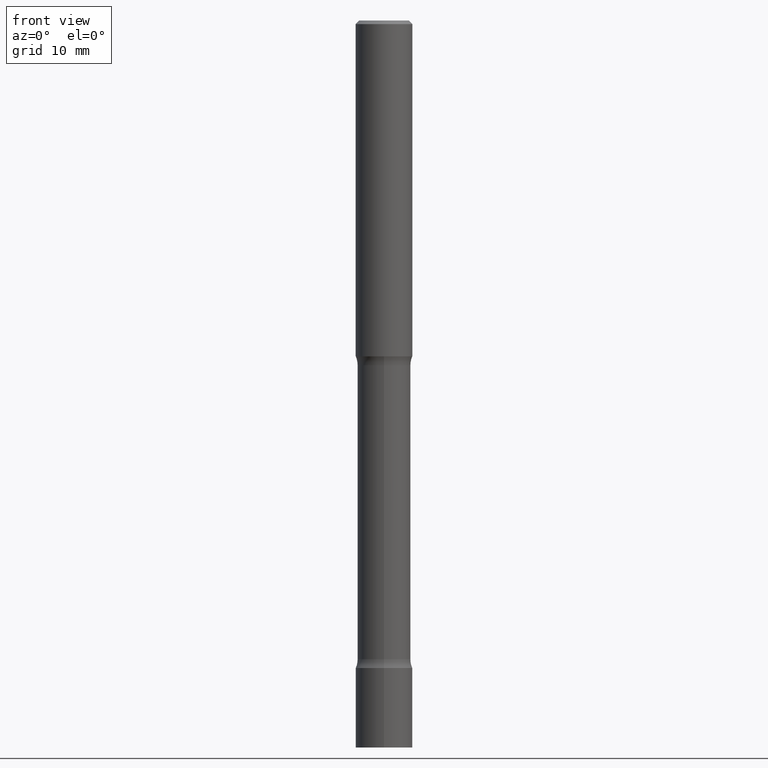
[diagram: clean part render]
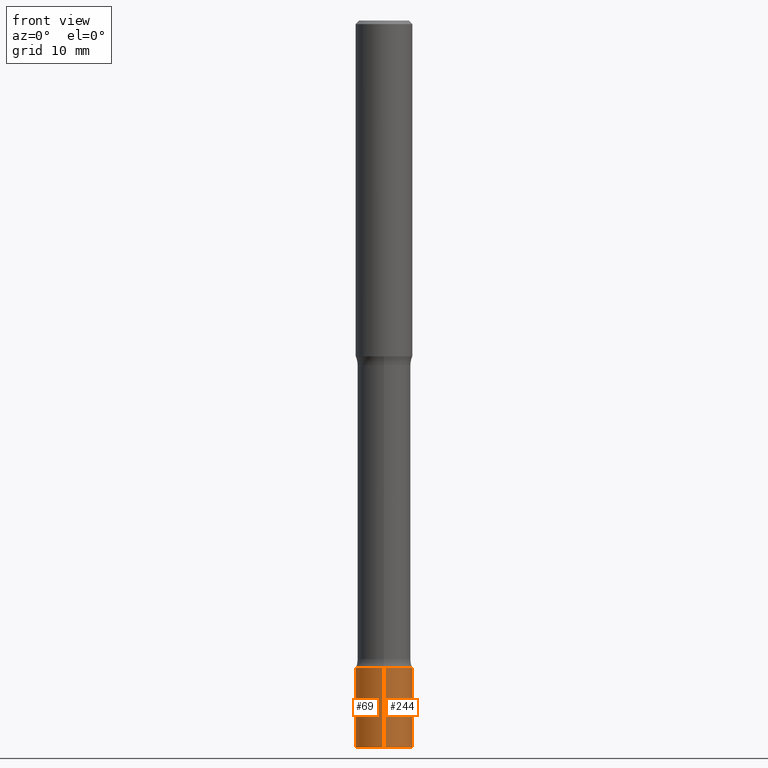
[diagram: same view with one multi-face feature highlighted, each face labeled with its STEP entity id]
A machine part, front view. The highlighted faces form ONE feature: a constant-radius fillet chain: 2 tangent blend faces with common blend radius 3.9688 mm. The faces share edges in the B-rep.
Their STEP definitions:
[1] entity #69 (Cylinder):
#4 = EDGE_CURVE ( 'NONE', #105, #86, #270, .T. ) ;
#10 = DIRECTION ( 'NONE',  ( -2.446290268283031571E-29, 3.490304958364241131E-15, 1.000000000000000000 ) ) ;
#12 = ORIENTED_EDGE ( 'NONE', *, *, #373, .F. ) ;
#24 = EDGE_LOOP ( 'NONE', ( #101, #134, #417, #12 ) ) ;
#34 = CARTESIAN_POINT ( 'NONE',  ( 0.000000000000000000, 0.000000000000000000, 0.000000000000000000 ) ) ;
#37 = VECTOR ( 'NONE', #167, 39.37007874015748143 ) ;
#68 = VERTEX_POINT ( 'NONE', #394 ) ;
#69 = ADVANCED_FACE ( 'NONE', ( #149 ), #315, .T. ) ;
#86 = VERTEX_POINT ( 'NONE', #320 ) ;
#93 = CARTESIAN_POINT ( 'NONE',  ( 9.785161073132126286E-29, -1.396121983345696295E-14, -4.000000000000000000 ) ) ;
#97 = LINE ( 'NONE', #480, #37 ) ;
#101 = ORIENTED_EDGE ( 'NONE', *, *, #388, .F. ) ;
#102 = DIRECTION ( 'NONE',  ( -6.982962677686265922E-15, -1.000000000000000000, 3.496765431890251792E-15 ) ) ;
#105 = VERTEX_POINT ( 'NONE', #256 ) ;
#119 = DIRECTION ( 'NONE',  ( -2.446290268283031571E-29, 3.490304958364241131E-15, 1.000000000000000000 ) ) ;
#120 = DIRECTION ( 'NONE',  ( -6.982962677686265922E-15, -1.000000000000000000, 3.490304958364241131E-15 ) ) ;
#134 = ORIENTED_EDGE ( 'NONE', *, *, #329, .T. ) ;
#149 = FACE_OUTER_BOUND ( 'NONE', #24, .T. ) ;
#167 = DIRECTION ( 'NONE',  ( -2.446290268283031571E-29, 3.490304958364241131E-15, 1.000000000000000000 ) ) ;
#187 = CIRCLE ( 'NONE', #470, 0.1562500000000002220 ) ;
#254 = DIRECTION ( 'NONE',  ( -2.446290268283031571E-29, 3.490304958364241131E-15, 1.000000000000000000 ) ) ;
#256 = CARTESIAN_POINT ( 'NONE',  ( -1.091087918388382538E-15, -0.1562500000000141831, -3.999999999999999556 ) ) ;
#270 = LINE ( 'NONE', #467, #478 ) ;
#280 = AXIS2_PLACEMENT_3D ( 'NONE', #34, #495, #120 ) ;
#315 = CYLINDRICAL_SURFACE ( 'NONE', #280, 0.1562500000000002220 ) ;
#320 = CARTESIAN_POINT ( 'NONE',  ( -1.091087918388393385E-15, -0.1562500000000126288, -3.562499999999999556 ) ) ;
#328 = CIRCLE ( 'NONE', #461, 0.1562500000000002220 ) ;
#329 = EDGE_CURVE ( 'NONE', #68, #105, #328, .T. ) ;
#361 = CARTESIAN_POINT ( 'NONE',  ( 8.714909080758299536E-29, -1.243421141417260827E-14, -3.562500000000000000 ) ) ;
#373 = EDGE_CURVE ( 'NONE', #486, #86, #187, .T. ) ;
#388 = EDGE_CURVE ( 'NONE', #68, #486, #97, .T. ) ;
#394 = CARTESIAN_POINT ( 'NONE',  ( 1.110223024625250218E-15, 0.1562499999999862332, -4.000000000000000888 ) ) ;
#417 = ORIENTED_EDGE ( 'NONE', *, *, #4, .T. ) ;
#450 = CARTESIAN_POINT ( 'NONE',  ( 1.110223024625255542E-15, 0.1562499999999877875, -3.562500000000000444 ) ) ;
#461 = AXIS2_PLACEMENT_3D ( 'NONE', #93, #254, #102 ) ;
#467 = CARTESIAN_POINT ( 'NONE',  ( -1.091087918388480554E-15, -0.1562500000000002220, 5.453601497444134286E-16 ) ) ;
#470 = AXIS2_PLACEMENT_3D ( 'NONE', #361, #10, #473 ) ;
#473 = DIRECTION ( 'NONE',  ( -6.982962677686265922E-15, -1.000000000000000000, 3.496765431890251792E-15 ) ) ;
#478 = VECTOR ( 'NONE', #119, 39.37007874015748143 ) ;
#480 = CARTESIAN_POINT ( 'NONE',  ( 1.110223024625157724E-15, 0.1562500000000002220, -5.453601497444134286E-16 ) ) ;
#486 = VERTEX_POINT ( 'NONE', #450 ) ;
#495 = DIRECTION ( 'NONE',  ( -2.446290268283031571E-29, 3.490304958364241131E-15, 1.000000000000000000 ) ) ;
[2] entity #244 (Cylinder):
#4 = EDGE_CURVE ( 'NONE', #105, #86, #270, .T. ) ;
#33 = DIRECTION ( 'NONE',  ( -2.446290268283031571E-29, 3.490304958364241131E-15, 1.000000000000000000 ) ) ;
#37 = VECTOR ( 'NONE', #167, 39.37007874015748143 ) ;
#68 = VERTEX_POINT ( 'NONE', #394 ) ;
#78 = DIRECTION ( 'NONE',  ( -6.982962677686265922E-15, -1.000000000000000000, 3.496765431890251792E-15 ) ) ;
#79 = CARTESIAN_POINT ( 'NONE',  ( 0.000000000000000000, 0.000000000000000000, 0.000000000000000000 ) ) ;
#86 = VERTEX_POINT ( 'NONE', #320 ) ;
#87 = AXIS2_PLACEMENT_3D ( 'NONE', #107, #33, #496 ) ;
#97 = LINE ( 'NONE', #480, #37 ) ;
#105 = VERTEX_POINT ( 'NONE', #256 ) ;
#107 = CARTESIAN_POINT ( 'NONE',  ( 8.714909080758299536E-29, -1.243421141417260827E-14, -3.562500000000000000 ) ) ;
#119 = DIRECTION ( 'NONE',  ( -2.446290268283031571E-29, 3.490304958364241131E-15, 1.000000000000000000 ) ) ;
#121 = CIRCLE ( 'NONE', #457, 0.1562500000000002220 ) ;
#131 = ORIENTED_EDGE ( 'NONE', *, *, #388, .T. ) ;
#150 = DIRECTION ( 'NONE',  ( -6.982962677686265922E-15, -1.000000000000000000, 3.490304958364241131E-15 ) ) ;
#160 = EDGE_CURVE ( 'NONE', #105, #68, #121, .T. ) ;
#167 = DIRECTION ( 'NONE',  ( -2.446290268283031571E-29, 3.490304958364241131E-15, 1.000000000000000000 ) ) ;
#177 = CIRCLE ( 'NONE', #87, 0.1562500000000002220 ) ;
#180 = FACE_OUTER_BOUND ( 'NONE', #331, .T. ) ;
#200 = EDGE_CURVE ( 'NONE', #86, #486, #177, .T. ) ;
#221 = CARTESIAN_POINT ( 'NONE',  ( 9.785161073132126286E-29, -1.396121983345696295E-14, -4.000000000000000000 ) ) ;
#232 = ORIENTED_EDGE ( 'NONE', *, *, #200, .F. ) ;
#244 = ADVANCED_FACE ( 'NONE', ( #180 ), #336, .T. ) ;
#256 = CARTESIAN_POINT ( 'NONE',  ( -1.091087918388382538E-15, -0.1562500000000141831, -3.999999999999999556 ) ) ;
#268 = DIRECTION ( 'NONE',  ( -2.446290268283031571E-29, 3.490304958364241131E-15, 1.000000000000000000 ) ) ;
#270 = LINE ( 'NONE', #467, #478 ) ;
#305 = ORIENTED_EDGE ( 'NONE', *, *, #160, .T. ) ;
#307 = DIRECTION ( 'NONE',  ( -2.446290268283031571E-29, 3.490304958364241131E-15, 1.000000000000000000 ) ) ;
#309 = AXIS2_PLACEMENT_3D ( 'NONE', #79, #268, #150 ) ;
#320 = CARTESIAN_POINT ( 'NONE',  ( -1.091087918388393385E-15, -0.1562500000000126288, -3.562499999999999556 ) ) ;
#331 = EDGE_LOOP ( 'NONE', ( #305, #131, #232, #407 ) ) ;
#336 = CYLINDRICAL_SURFACE ( 'NONE', #309, 0.1562500000000002220 ) ;
#388 = EDGE_CURVE ( 'NONE', #68, #486, #97, .T. ) ;
#394 = CARTESIAN_POINT ( 'NONE',  ( 1.110223024625250218E-15, 0.1562499999999862332, -4.000000000000000888 ) ) ;
#407 = ORIENTED_EDGE ( 'NONE', *, *, #4, .F. ) ;
#450 = CARTESIAN_POINT ( 'NONE',  ( 1.110223024625255542E-15, 0.1562499999999877875, -3.562500000000000444 ) ) ;
#457 = AXIS2_PLACEMENT_3D ( 'NONE', #221, #307, #78 ) ;
#467 = CARTESIAN_POINT ( 'NONE',  ( -1.091087918388480554E-15, -0.1562500000000002220, 5.453601497444134286E-16 ) ) ;
#478 = VECTOR ( 'NONE', #119, 39.37007874015748143 ) ;
#480 = CARTESIAN_POINT ( 'NONE',  ( 1.110223024625157724E-15, 0.1562500000000002220, -5.453601497444134286E-16 ) ) ;
#486 = VERTEX_POINT ( 'NONE', #450 ) ;
#496 = DIRECTION ( 'NONE',  ( -6.982962677686265922E-15, -1.000000000000000000, 3.496765431890251792E-15 ) ) ;